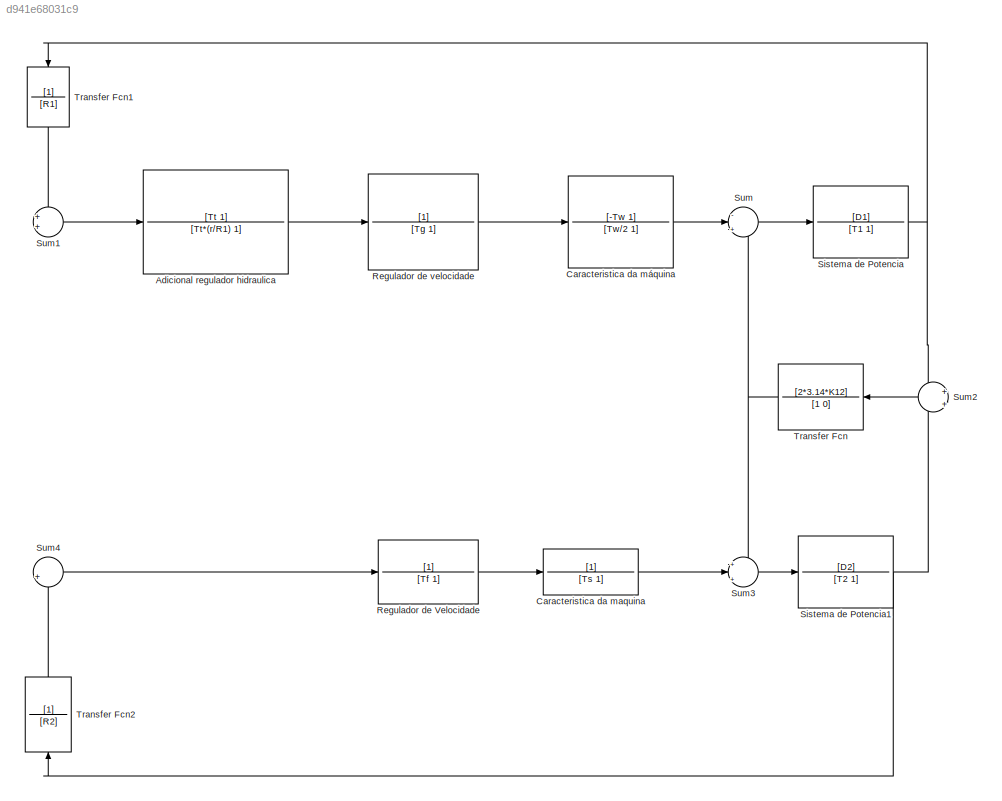
MODEL slx_d941e68031c9
KIND model
CONFIG AbsTol = auto
CONFIG EnableMultiTasking = off
CONFIG FixedStep = auto
CONFIG MaxStep = auto
CONFIG MinStep = auto
CONFIG RelTol = 1e-3
CONFIG SampleTimeConstraint = Unconstrained
CONFIG SolverName = VariableStepAuto
CONFIG StartTime = 0.0
CONFIG StopTime = 10.0
BLOCK [TransferFcn] Adicional regulador hidraulica
  Denominator = [Tt*(r/R1) 1]
  Numerator = [Tt 1]
BLOCK [TransferFcn] Caracteristica da maquina
  Denominator = [Ts 1]
BLOCK [TransferFcn] Caracteristica da máquina
  Denominator = [Tw/2 1]
  Numerator = [-Tw 1]
BLOCK [TransferFcn] Regulador de Velocidade
  Denominator = [Tf 1]
BLOCK [TransferFcn] Regulador de velocidade
  Denominator = [Tg 1]
BLOCK [TransferFcn] Sistema de Potencia
  Denominator = [T1 1]
  Numerator = [D1]
BLOCK [TransferFcn] Sistema de Potencia1
  Denominator = [T2 1]
  Numerator = [D2]
BLOCK [Sum] Sum
  Inputs = -|+|-
BLOCK [Sum] Sum1
  Inputs = ++|
BLOCK [Sum] Sum2
  Inputs = +|+
  NameLocation = top
BLOCK [Sum] Sum3
  Inputs = +|+|-
BLOCK [Sum] Sum4
  Inputs = |+-
BLOCK [TransferFcn] Transfer Fcn
  Denominator = [1 0]
  NameLocation = top
  Numerator = [2*3.14*K12]
BLOCK [TransferFcn] Transfer Fcn1
  Denominator = [R1]
  NameLocation = left
BLOCK [TransferFcn] Transfer Fcn2
  Denominator = [R2]
  NameLocation = right
LINE Adicional regulador hidraulica:1 -> Regulador de velocidade:1
LINE Caracteristica da maquina:1 -> Sum3:2
LINE Caracteristica da máquina:1 -> Sum:2
LINE Regulador de Velocidade:1 -> Caracteristica da maquina:1
LINE Regulador de velocidade:1 -> Caracteristica da máquina:1
NET Sistema de Potencia1:1 -> Sum2:2, Transfer Fcn2:1
NET Sistema de Potencia:1 -> Sum2:1, Transfer Fcn1:1
LINE Sum1:1 -> Adicional regulador hidraulica:1
LINE Sum2:1 -> Transfer Fcn:1
LINE Sum3:1 -> Sistema de Potencia1:1
LINE Sum4:1 -> Regulador de Velocidade:1
LINE Sum:1 -> Sistema de Potencia:1
LINE Transfer Fcn1:1 -> Sum1:1
LINE Transfer Fcn2:1 -> Sum4:2
NET Transfer Fcn:1 -> Sum3:1, Sum:3
note: NET lines group one-source signal fan-out (src -> all destinations, sorted); 1:1 wires keep LINE
